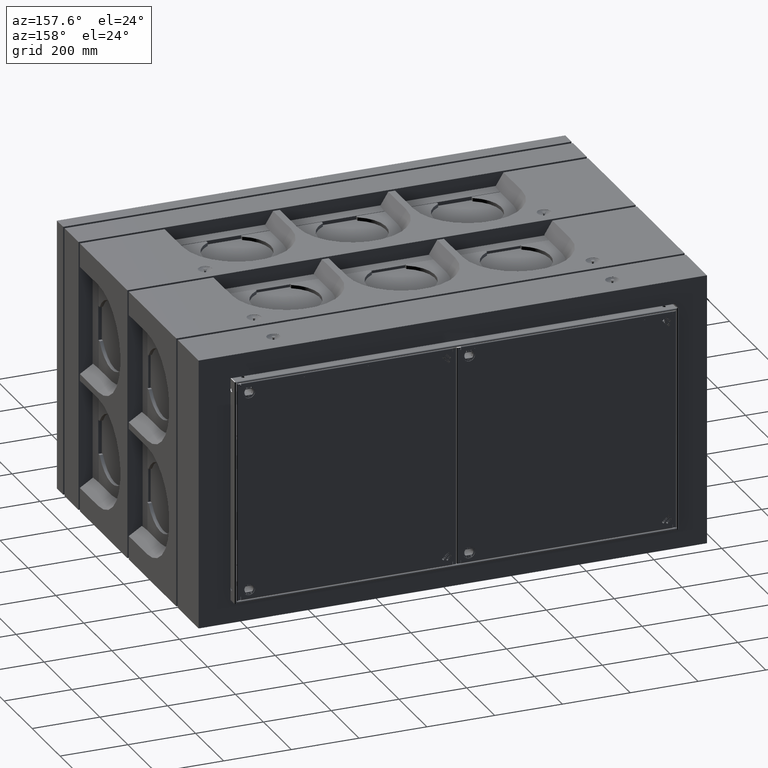
[diagram: clean part render]
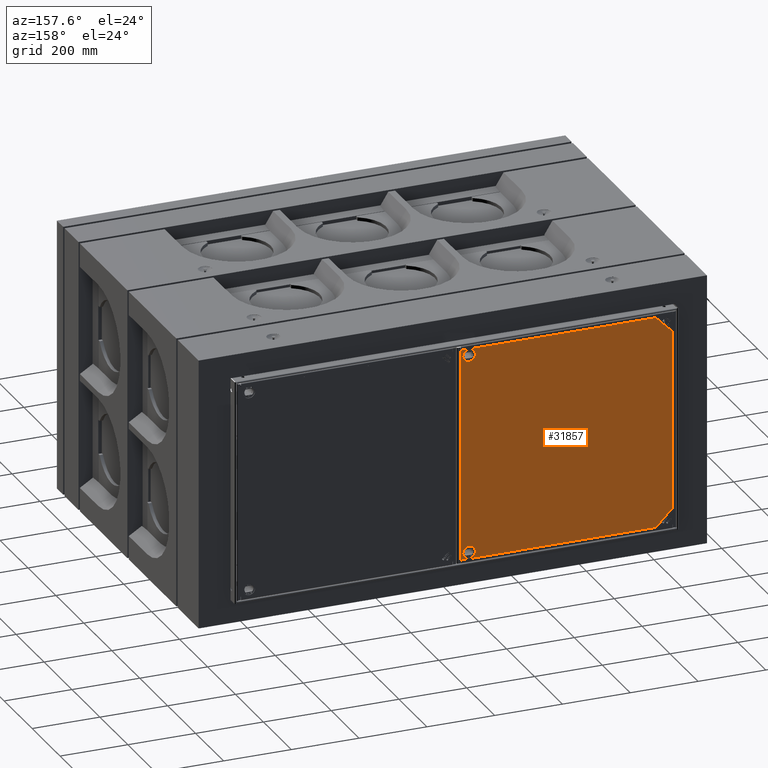
[diagram: same view with one face highlighted and labeled with its STEP entity id]
A machine part, auxiliary view. The second image highlights one B-rep face of the part: STEP entity #31857.
In plain terms, the highlighted planar face has unit normal (0, -1, 0).
Its self-contained STEP definition (entity closure, byte-faithful):
#139 = AXIS2_PLACEMENT_3D ( 'NONE', #32635, #20262, #17785 ) ;
#274 = VERTEX_POINT ( 'NONE', #35272 ) ;
#1014 = EDGE_CURVE ( 'NONE', #33466, #24706, #26457, .T. ) ;
#1040 = ORIENTED_EDGE ( 'NONE', *, *, #5200, .T. ) ;
#1124 = CARTESIAN_POINT ( 'NONE',  ( -587.1240789819476049, 1044.000000000013188, 313.0000000000003979 ) ) ;
#1174 = CIRCLE ( 'NONE', #8418, 18.49999999999998934 ) ;
#1551 = EDGE_LOOP ( 'NONE', ( #13200, #15542, #1904, #11932, #35840, #1040 ) ) ;
#1904 = ORIENTED_EDGE ( 'NONE', *, *, #37959, .T. ) ;
#2227 = DIRECTION ( 'NONE',  ( 1.000000000000000000, 3.053113317719105051E-16, 1.734723475976241950E-17 ) ) ;
#4897 = EDGE_CURVE ( 'NONE', #11817, #274, #5434, .T. ) ;
#5074 = CARTESIAN_POINT ( 'NONE',  ( -637.1240789819477186, 1044.000000000008868, -312.9999999999994884 ) ) ;
#5200 = EDGE_CURVE ( 'NONE', #24706, #11817, #8430, .T. ) ;
#5434 = LINE ( 'NONE', #5074, #10097 ) ;
#6128 = EDGE_CURVE ( 'NONE', #274, #22864, #37297, .T. ) ;
#6420 = DIRECTION ( 'NONE',  ( -3.053113317719104065E-16, 1.000000000000000000, -6.883599593110469229E-15 ) ) ;
#7366 = VERTEX_POINT ( 'NONE', #37616 ) ;
#7871 = CARTESIAN_POINT ( 'NONE',  ( -54.62407898194794598, 1044.000000000009095, -293.9999999999990905 ) ) ;
#8418 = AXIS2_PLACEMENT_3D ( 'NONE', #15312, #24581, #18329 ) ;
#8430 = LINE ( 'NONE', #16202, #14058 ) ;
#9444 = VECTOR ( 'NONE', #26470, 1000.000000000000000 ) ;
#9516 = ORIENTED_EDGE ( 'NONE', *, *, #33891, .F. ) ;
#9566 = DIRECTION ( 'NONE',  ( -1.000000000000000000, 0.0000000000000000000, 0.0000000000000000000 ) ) ;
#10097 = VECTOR ( 'NONE', #20134, 1000.000000000000000 ) ;
#10397 = DIRECTION ( 'NONE',  ( -1.000000000000000000, -3.053113317719105051E-16, -1.734723475976241950E-17 ) ) ;
#10546 = EDGE_LOOP ( 'NONE', ( #33967 ) ) ;
#11327 = LINE ( 'NONE', #20725, #9444 ) ;
#11817 = VERTEX_POINT ( 'NONE', #22026 ) ;
#11932 = ORIENTED_EDGE ( 'NONE', *, *, #37114, .T. ) ;
#13200 = ORIENTED_EDGE ( 'NONE', *, *, #4897, .T. ) ;
#14058 = VECTOR ( 'NONE', #36661, 1000.000000000000000 ) ;
#15076 = CARTESIAN_POINT ( 'NONE',  ( -587.1240789819473775, 1044.000000000008868, -312.9999999999994884 ) ) ;
#15264 = EDGE_LOOP ( 'NONE', ( #9516 ) ) ;
#15312 = CARTESIAN_POINT ( 'NONE',  ( -36.12407898194808098, 1044.000000000013188, 294.0000000000006821 ) ) ;
#15542 = ORIENTED_EDGE ( 'NONE', *, *, #6128, .T. ) ;
#15868 = FACE_BOUND ( 'NONE', #15264, .T. ) ;
#16202 = CARTESIAN_POINT ( 'NONE',  ( -637.1240789819477186, 1044.000000000009095, -262.9999999999993747 ) ) ;
#17625 = VECTOR ( 'NONE', #10397, 1000.000000000000000 ) ;
#17785 = DIRECTION ( 'NONE',  ( 1.000000000000000000, 3.053113317719105544E-16, 1.734723475976241950E-17 ) ) ;
#18329 = DIRECTION ( 'NONE',  ( -1.000000000000000000, 0.0000000000000000000, 0.0000000000000000000 ) ) ;
#18510 = DIRECTION ( 'NONE',  ( 0.7071067811865462405, 5.083327664330394487E-15, 0.7071067811865489050 ) ) ;
#19454 = CARTESIAN_POINT ( 'NONE',  ( -11.12407898194783762, 1044.000000000013415, 313.0000000000003979 ) ) ;
#19513 = AXIS2_PLACEMENT_3D ( 'NONE', #24604, #6420, #9566 ) ;
#20134 = DIRECTION ( 'NONE',  ( -1.734723475976452107E-17, 6.883599593110469229E-15, 1.000000000000000000 ) ) ;
#20262 = DIRECTION ( 'NONE',  ( 3.053113317719104558E-16, -1.000000000000000000, 6.883599593110468440E-15 ) ) ;
#20725 = CARTESIAN_POINT ( 'NONE',  ( -11.12407898194783762, 1044.000000000008868, -312.9999999999994884 ) ) ;
#21061 = VECTOR ( 'NONE', #2227, 1000.000000000000000 ) ;
#22026 = CARTESIAN_POINT ( 'NONE',  ( -637.1240789819477186, 1044.000000000009095, -262.9999999999993747 ) ) ;
#22278 = CARTESIAN_POINT ( 'NONE',  ( -11.12407898194783762, 1044.000000000008868, -312.9999999999994884 ) ) ;
#22864 = VERTEX_POINT ( 'NONE', #27505 ) ;
#23575 = EDGE_CURVE ( 'NONE', #31193, #31193, #33741, .T. ) ;
#24581 = DIRECTION ( 'NONE',  ( -3.053113317719104065E-16, 1.000000000000000000, -6.883599593110469229E-15 ) ) ;
#24604 = CARTESIAN_POINT ( 'NONE',  ( -36.12407898194802414, 1044.000000000009095, -293.9999999999990905 ) ) ;
#24706 = VERTEX_POINT ( 'NONE', #15076 ) ;
#26457 = LINE ( 'NONE', #22278, #17625 ) ;
#26470 = DIRECTION ( 'NONE',  ( 1.734723475976452107E-17, -6.883599593110469229E-15, -1.000000000000000000 ) ) ;
#27490 = CARTESIAN_POINT ( 'NONE',  ( -11.12407898194783762, 1044.000000000008868, -312.9999999999994884 ) ) ;
#27505 = CARTESIAN_POINT ( 'NONE',  ( -587.1240789819476049, 1044.000000000013188, 313.0000000000003979 ) ) ;
#29375 = VECTOR ( 'NONE', #18510, 1000.000000000000000 ) ;
#30327 = FACE_BOUND ( 'NONE', #10546, .T. ) ;
#31193 = VERTEX_POINT ( 'NONE', #7871 ) ;
#31294 = FACE_OUTER_BOUND ( 'NONE', #1551, .T. ) ;
#31857 = ADVANCED_FACE ( 'NONE', ( #30327, #15868, #31294 ), #35254, .F. ) ;
#32278 = LINE ( 'NONE', #32499, #21061 ) ;
#32499 = CARTESIAN_POINT ( 'NONE',  ( -11.12407898194783762, 1044.000000000013415, 313.0000000000003979 ) ) ;
#32635 = CARTESIAN_POINT ( 'NONE',  ( -421.7739980743295405, 1044.000000000010687, -50.86569360062657807 ) ) ;
#33466 = VERTEX_POINT ( 'NONE', #27490 ) ;
#33741 = CIRCLE ( 'NONE', #19513, 18.49999999999991829 ) ;
#33891 = EDGE_CURVE ( 'NONE', #7366, #7366, #1174, .T. ) ;
#33967 = ORIENTED_EDGE ( 'NONE', *, *, #23575, .F. ) ;
#34623 = VERTEX_POINT ( 'NONE', #19454 ) ;
#35254 = PLANE ( 'NONE',  #139 ) ;
#35272 = CARTESIAN_POINT ( 'NONE',  ( -637.1240789819477186, 1044.000000000012733, 263.0000000000001137 ) ) ;
#35840 = ORIENTED_EDGE ( 'NONE', *, *, #1014, .T. ) ;
#36661 = DIRECTION ( 'NONE',  ( -0.7071067811865484609, 4.651552238192351281E-15, 0.7071067811865465735 ) ) ;
#37114 = EDGE_CURVE ( 'NONE', #34623, #33466, #11327, .T. ) ;
#37297 = LINE ( 'NONE', #1124, #29375 ) ;
#37616 = CARTESIAN_POINT ( 'NONE',  ( -54.62407898194807387, 1044.000000000013188, 294.0000000000006821 ) ) ;
#37959 = EDGE_CURVE ( 'NONE', #22864, #34623, #32278, .T. ) ;